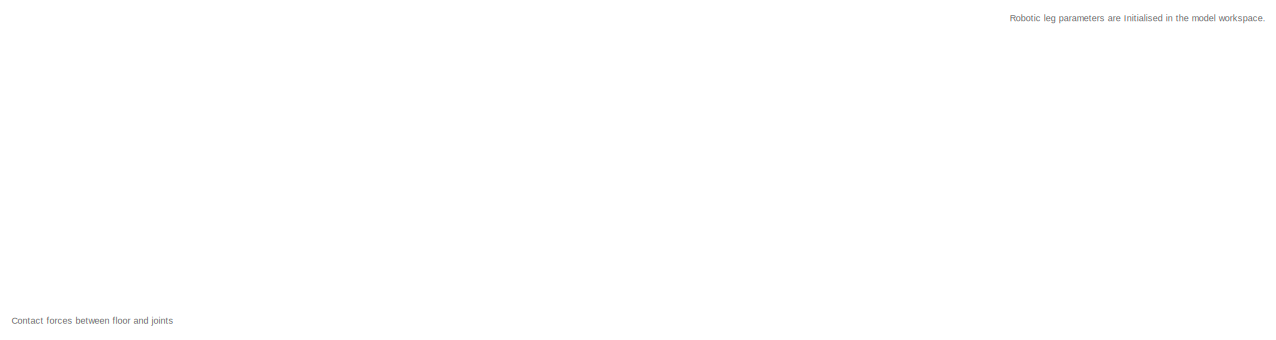
[diagram: root canvas - part 1/7, top left region]
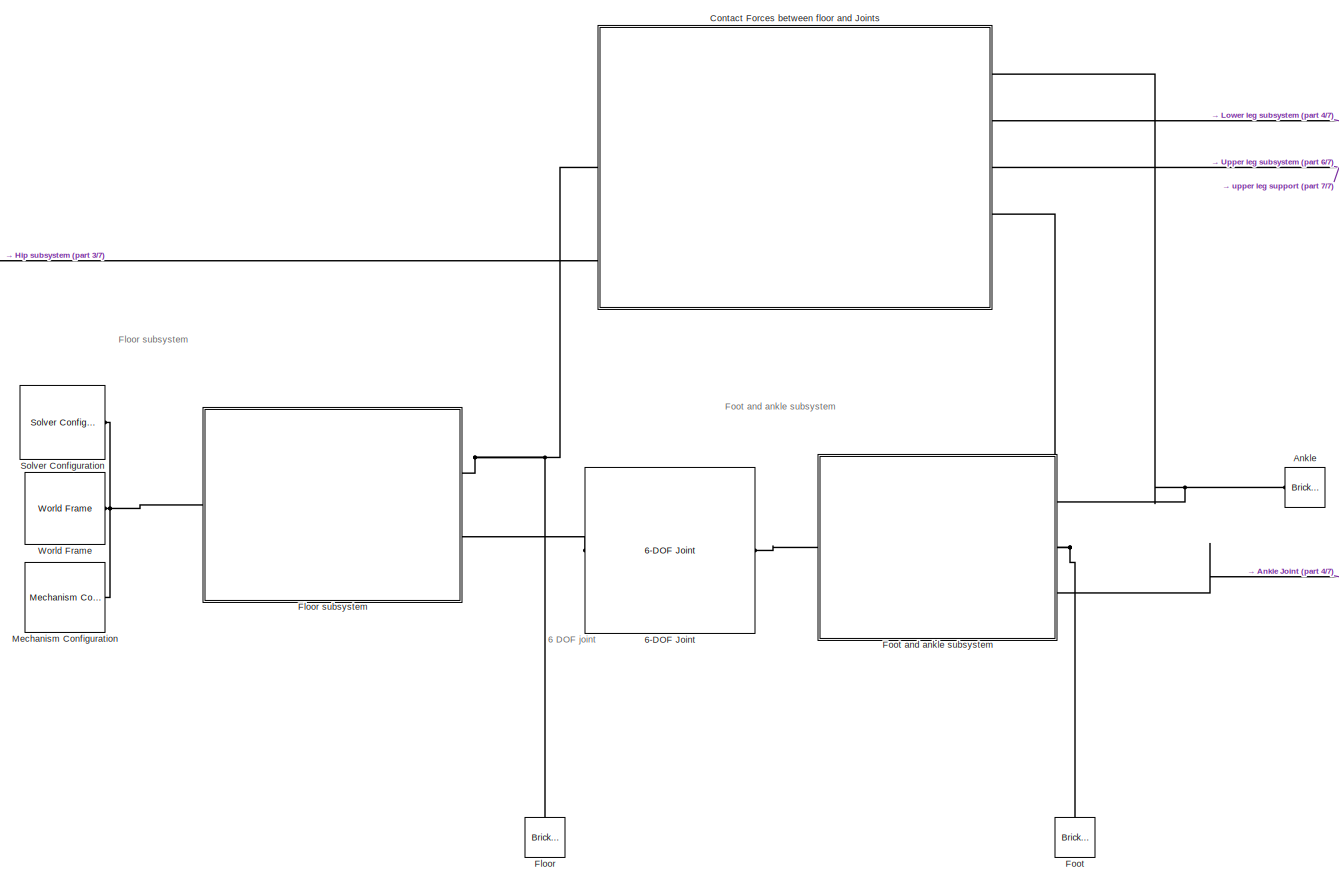
[diagram: root canvas - part 2/7, middle left region]
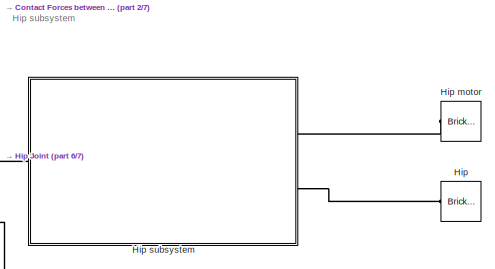
[diagram: root canvas - part 3/7, middle right region]
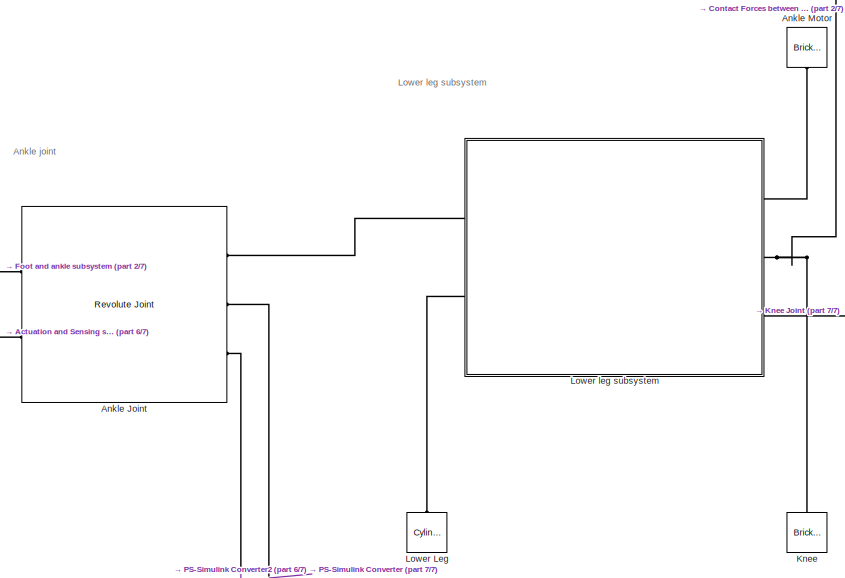
[diagram: root canvas - part 4/7, central region]
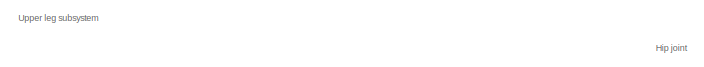
[diagram: root canvas - part 5/7, middle right region]
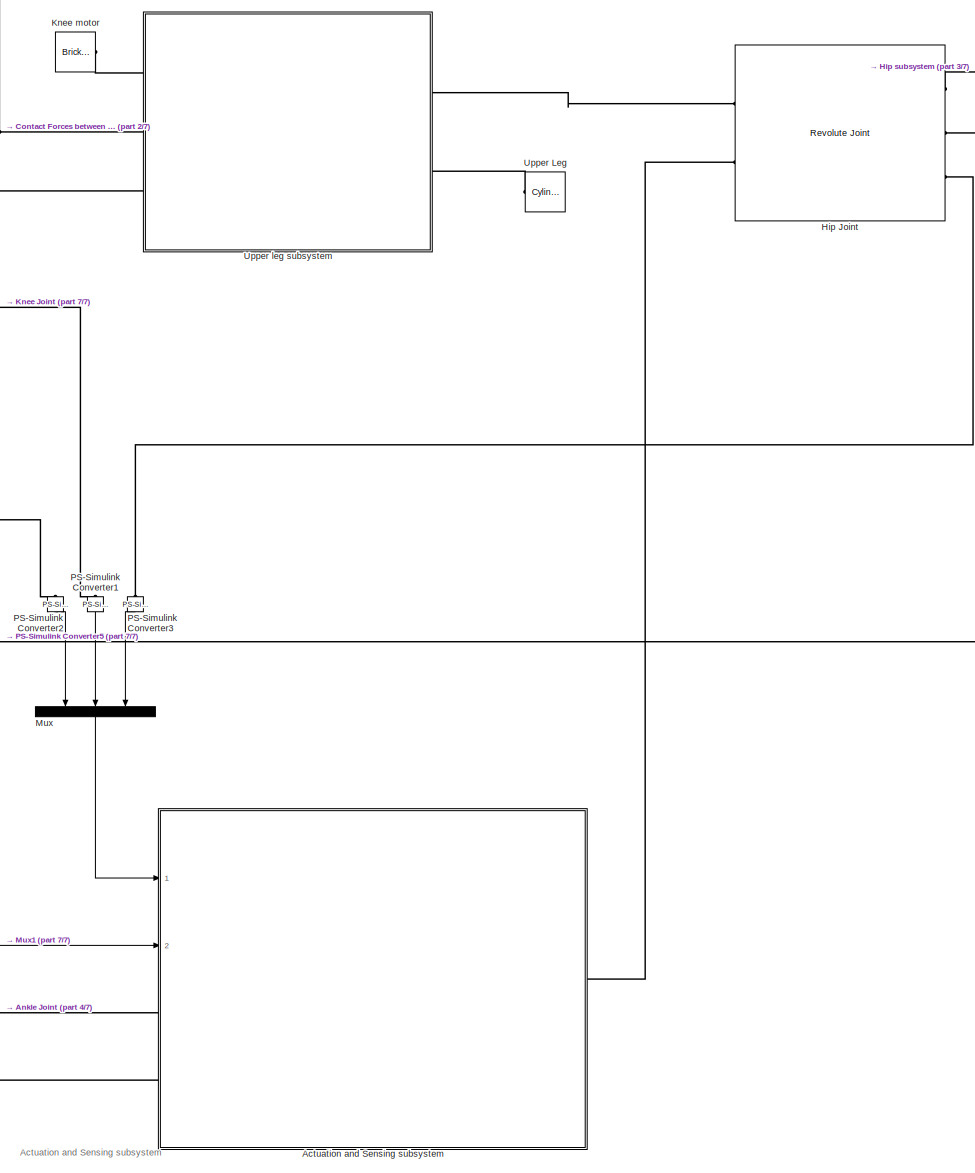
[diagram: root canvas - part 6/7, bottom right region]
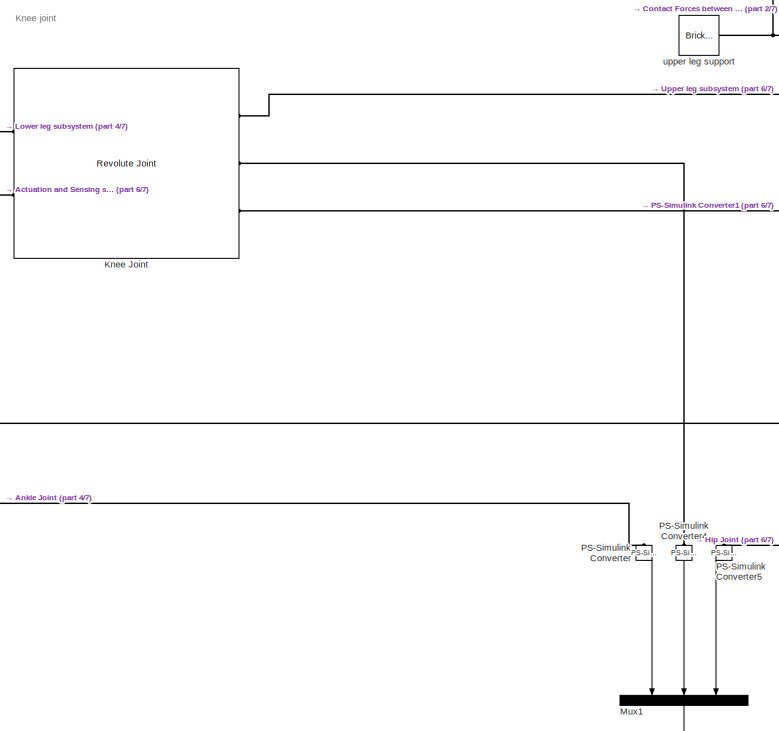
[diagram: root canvas - part 7/7, central region]
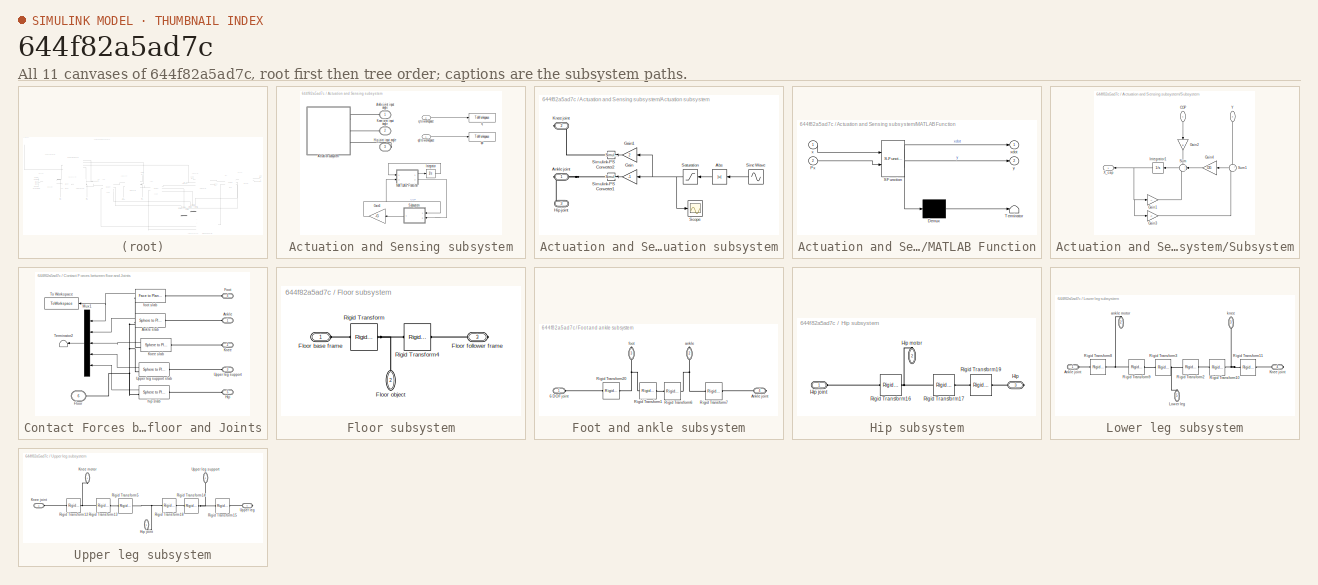
[diagram: thumbnail index - all 11 canvases of the model, root first then tree order]
MODEL slx_644f82a5ad7c
KIND model
CONFIG AbsTol = auto
CONFIG EnableMultiTasking = off
CONFIG FixedStep = auto
CONFIG MaxStep = auto
CONFIG MinStep = auto
CONFIG RelTol = 1e-3
CONFIG SampleTimeConstraint = Unconstrained
CONFIG Solver = VariableStepAuto
CONFIG SolverName = VariableStepAuto
CONFIG StartTime = 0.0
CONFIG StopTime = 10.0
WORKSPACE source: MATLAB code (in-file)
WORKSPACE foot_l = 11.7
WORKSPACE foot_w = 5
WORKSPACE foot_h = 2
WORKSPACE support_w = 4
WORKSPACE support_l = 2.5
WORKSPACE support_h = 5.5
WORKSPACE motor_w = 3.3
WORKSPACE motor_l = 3
WORKSPACE motor_h = 5.4
WORKSPACE link_r = 0.6
WORKSPACE link1_l = 19.4
WORKSPACE link2_l = 15
WORKSPACE hip_l = 9
WORKSPACE hip_w = 6
WORKSPACE hip_h = 4
WORKSPACE surface_damping = 1e2  (= 100)
WORKSPACE surface_stiffness = 1e4  (= 10000)
WORKSPACE foot_m = 20
WORKSPACE support_m = 20
WORKSPACE motor_m = 57.2
WORKSPACE link_m = 20
WORKSPACE hip_m = 30
WORKSPACE m = 3.6
WORKSPACE g = 9.81
WORKSPACE Zc = 0.35
WORKSPACE w = sqrt(g/Zc)
WORKSPACE init_velocity = 0.1
WORKSPACE X0 = 0
WORKSPACE init_CP = X0 + init_velocity/w
WORKSPACE code: A = [-w w;0 w];
WORKSPACE code: B = [0;-w];
WORKSPACE C = [1 0]
WORKSPACE Q = diag([1,1])
WORKSPACE R = 1
WORKSPACE G = lqr(A,B,Q,R)
WORKSPACE VV = 1
WORKSPACE WW = 1
WORKSPACE OG = lqe(A,B,C,VV,WW)
BLOCK [Reference] 6-DOF Joint  REF=sm_lib/Joints/6-DOF Joint
  Ports = [0, 0, 0, 0, 0, 1, 1]
  SourceBlock = sm_lib/Joints/6-DOF Joint
  SourceProductBaseCode = MS
  SourceProductName = Simscape Multibody
  SourceType = 6-DOF Joint
BLOCK [SubSystem] Actuation and Sensing subsystem
  Ports = [2, 0, 0, 0, 0, 2, 1]
  RequestExecContextInheritance = off
BLOCK [SubSystem] Actuation and Sensing subsystem/Actuation subsystem
  Ports = [0, 0, 0, 0, 0, 0, 3]
  RequestExecContextInheritance = off
BLOCK [Abs] Actuation and Sensing subsystem/Actuation subsystem/Abs
  SaturateOnIntegerOverflow = off
BLOCK [PMIOPort] Actuation and Sensing subsystem/Actuation subsystem/Ankle joint
  Side = Right
BLOCK [Gain] Actuation and Sensing subsystem/Actuation subsystem/Gain
  Gain = -1
  OutDataTypeStr = Inherit: Inherit via internal rule
  ParamDataTypeStr = Inherit: Inherit via internal rule
  SaturateOnIntegerOverflow = off
BLOCK [Gain] Actuation and Sensing subsystem/Actuation subsystem/Gain1
  Gain = 2
  OutDataTypeStr = Inherit: Inherit via internal rule
  ParamDataTypeStr = Inherit: Inherit via internal rule
  SaturateOnIntegerOverflow = off
BLOCK [PMIOPort] Actuation and Sensing subsystem/Actuation subsystem/Hip joint
  Port = 3
  Side = Right
  Tag = PMCPort
BLOCK [PMIOPort] Actuation and Sensing subsystem/Actuation subsystem/Knee joint
  Port = 2
  Side = Right
  Tag = PMCPort
BLOCK [Saturate] Actuation and Sensing subsystem/Actuation subsystem/Saturation
  InputPortMap = u0
  LowerLimit = pi/20
  Ports = [1, 1]
  UpperLimit = 30
BLOCK [Scope] Actuation and Sensing subsystem/Actuation subsystem/Scope
  Floating = off
  NumInputPorts = 1
  Ports = [1]
  ScopeSpecificationString = Simulink.scopes.TimeScopeBlockCfg('CurrentConfiguration', extmgr.ConfigurationSet(extmgr.Configuration('Core','General UI',true),extmgr.Configuration('Core','Source UI',true),extmgr.Configuration('Sources','WiredSimulink',true),extmgr.Configuration('Visuals','Time Domain',true,'SerializedDisplays',{struct('MinYLimReal','-3.57329','MaxYLimReal','33.73037','YLabelReal','','MinYLimMag','0.00000','Max...<+1380ch>
BLOCK [Reference] Actuation and Sensing subsystem/Actuation subsystem/Simulink-PS Converter1  REF=nesl_utility/Simulink-PS
Converter
  Ports = [1, 0, 0, 0, 0, 0, 1]
  SourceBlock = nesl_utility/Simulink-PS\nConverter
  SourceProductBaseCode = SS
  SourceProductName = Simscape
  SourceType = Simulink-PS\nConverter
BLOCK [Reference] Actuation and Sensing subsystem/Actuation subsystem/Simulink-PS Converter2  REF=nesl_utility/Simulink-PS
Converter
  Ports = [1, 0, 0, 0, 0, 0, 1]
  SourceBlock = nesl_utility/Simulink-PS\nConverter
  SourceProductBaseCode = SS
  SourceProductName = Simscape
  SourceType = Simulink-PS\nConverter
BLOCK [Sin] Actuation and Sensing subsystem/Actuation subsystem/Sine Wave
  Amplitude = 30
  Frequency = 2*pi/20
  Offset = 1
  Phase = pi/20
  Ports = [0, 1]
  SampleTime = 0
  Samples = 20
BLOCK [PMIOPort] Actuation and Sensing subsystem/Ankle joint input angle
  Side = Left
  Tag = PMCPort
BLOCK [Gain] Actuation and Sensing subsystem/Gain3
  Gain = -G
  Multiplication = Matrix(K*u)
  OutDataTypeStr = Inherit: Inherit via internal rule
  ParamDataTypeStr = Inherit: Inherit via internal rule
  SaturateOnIntegerOverflow = off
BLOCK [PMIOPort] Actuation and Sensing subsystem/Hip joint input angle
  Port = 3
  Side = Right
  Tag = PMCPort
BLOCK [Integrator] Actuation and Sensing subsystem/Integrator
  ContinuousStateAttributes = {'COM', 'CP'}
  InitialCondition = [X0;init_CP]
  Ports = [1, 1]
BLOCK [PMIOPort] Actuation and Sensing subsystem/Knee joint input angle
  Port = 2
  Side = Left
  Tag = PMCPort
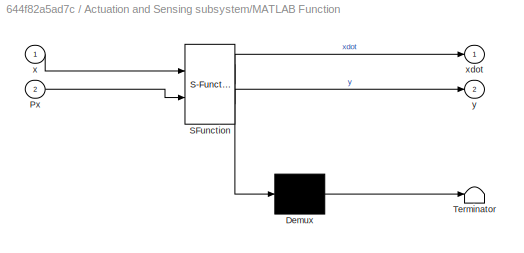
BLOCK [SubSystem] Actuation and Sensing subsystem/MATLAB Function
  ErrorFcn = Stateflow.Translate.translate
  PermitHierarchicalResolution = ExplicitOnly
  Ports = [2, 2]
  RequestExecContextInheritance = off
  SFBlockType = MATLAB Function
  TreatAsAtomicUnit = on
BLOCK [Demux] Actuation and Sensing subsystem/MATLAB Function/ Demux 
  Outputs = 1
  Ports = [1, 1]
BLOCK [S-Function] Actuation and Sensing subsystem/MATLAB Function/ SFunction 
  EnableBusSupport = on
  FunctionName = sf_sfun
  PortCounts = [2 3]
  Ports = [2, 3]
  SFcnIsStateOwnerBlock = off
  SFunctionDeploymentMode = off
  Tag = Stateflow S-Function 2
BLOCK [Terminator] Actuation and Sensing subsystem/MATLAB Function/ Terminator 
BLOCK [Inport] Actuation and Sensing subsystem/MATLAB Function/Px
  IconDisplay = Port number
  Port = 2
BLOCK [Inport] Actuation and Sensing subsystem/MATLAB Function/x
  IconDisplay = Port number
BLOCK [Outport] Actuation and Sensing subsystem/MATLAB Function/xdot
  IconDisplay = Port number
BLOCK [Outport] Actuation and Sensing subsystem/MATLAB Function/y
  IconDisplay = Port number
  Port = 2
BLOCK [SubSystem] Actuation and Sensing subsystem/Subsystem
  Ports = [2, 1]
  RequestExecContextInheritance = off
BLOCK [Inport] Actuation and Sensing subsystem/Subsystem/COP
  IconDisplay = Port number
BLOCK [Gain] Actuation and Sensing subsystem/Subsystem/Gain1
  Gain = A
  Multiplication = Matrix(K*u)
  OutDataTypeStr = Inherit: Inherit via internal rule
  ParamDataTypeStr = Inherit: Inherit via internal rule
  SaturateOnIntegerOverflow = off
BLOCK [Gain] Actuation and Sensing subsystem/Subsystem/Gain2
  Gain = B
  Multiplication = Matrix(K*u)
  OutDataTypeStr = Inherit: Inherit via internal rule
  ParamDataTypeStr = Inherit: Inherit via internal rule
  SaturateOnIntegerOverflow = off
BLOCK [Gain] Actuation and Sensing subsystem/Subsystem/Gain3
  Gain = C
  Multiplication = Matrix(K*u)
  OutDataTypeStr = Inherit: Inherit via internal rule
  ParamDataTypeStr = Inherit: Inherit via internal rule
  SaturateOnIntegerOverflow = off
BLOCK [Gain] Actuation and Sensing subsystem/Subsystem/Gain4
  Gain = OG
  Multiplication = Matrix(K*u)
  OutDataTypeStr = Inherit: Inherit via internal rule
  ParamDataTypeStr = Inherit: Inherit via internal rule
  SaturateOnIntegerOverflow = off
BLOCK [Integrator] Actuation and Sensing subsystem/Subsystem/Integrator1
  InitialCondition = [0;0]
  Ports = [1, 1]
BLOCK [Sum] Actuation and Sensing subsystem/Subsystem/Sum
  IconShape = round
  InputSameDT = off
  Inputs = +++
  OutDataTypeStr = Inherit: Inherit via internal rule
  Ports = [3, 1]
  SaturateOnIntegerOverflow = off
BLOCK [Sum] Actuation and Sensing subsystem/Subsystem/Sum1
  IconShape = round
  InputSameDT = off
  Inputs = +|-
  OutDataTypeStr = Inherit: Inherit via internal rule
  Ports = [2, 1]
  SaturateOnIntegerOverflow = off
BLOCK [Outport] Actuation and Sensing subsystem/Subsystem/X_cap
  IconDisplay = Port number
BLOCK [Inport] Actuation and Sensing subsystem/Subsystem/Y
  IconDisplay = Port number
  Port = 2
BLOCK [ToWorkspace] Actuation and Sensing subsystem/q
  FixptAsFi = on
  MaxDataPoints = inf
  Ports = [1]
  SampleTime = -1
  SaveFormat = Timeseries
  VariableName = q
BLOCK [Inport] Actuation and Sensing subsystem/q to workspace
  IconDisplay = Port number
  Port = 2
BLOCK [ToWorkspace] Actuation and Sensing subsystem/qd
  FixptAsFi = on
  MaxDataPoints = inf
  Ports = [1]
  SampleTime = -1
  SaveFormat = Timeseries
  VariableName = qd
BLOCK [Inport] Actuation and Sensing subsystem/qd to workspace
  IconDisplay = Port number
BLOCK [Reference] Ankle  REF=sm_lib/Body Elements/Brick Solid
  Ports = [0, 0, 0, 0, 0, 0, 1]
  SourceBlock = sm_lib/Body Elements/Brick Solid
  SourceProductBaseCode = MS
  SourceProductName = Simscape Multibody
  SourceType = Brick Solid
BLOCK [Reference] Ankle Joint  REF=sm_lib/Joints/Revolute Joint
  Ports = [0, 0, 0, 0, 0, 2, 3]
  SourceBlock = sm_lib/Joints/Revolute Joint
  SourceProductBaseCode = MS
  SourceProductName = Simscape Multibody
  SourceType = Revolute Joint
BLOCK [Reference] Ankle Motor  REF=sm_lib/Body Elements/Brick Solid
  Ports = [0, 0, 0, 0, 0, 0, 1]
  SourceBlock = sm_lib/Body Elements/Brick Solid
  SourceProductBaseCode = MS
  SourceProductName = Simscape Multibody
  SourceType = Brick Solid
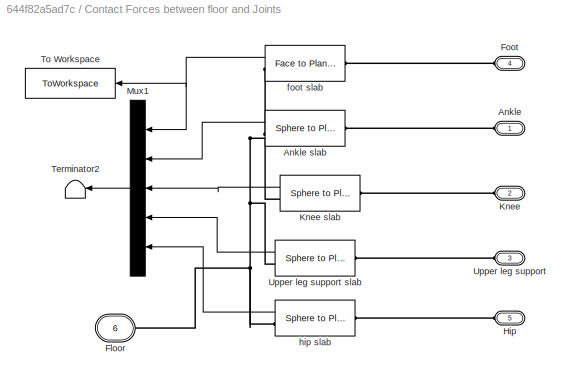
BLOCK [SubSystem] Contact Forces between floor and Joints
  Ports = [0, 0, 0, 0, 0, 5, 1]
  RequestExecContextInheritance = off
BLOCK [PMIOPort] Contact Forces between floor and Joints/Ankle
  Side = Left
BLOCK [Reference] Contact Forces between floor and Joints/Ankle slab  REF=Contact_Forces_Lib/3D/Sphere to Plane Force
  Ports = [0, 1, 0, 0, 0, 1, 1]
  SourceBlock = Contact_Forces_Lib/3D/Sphere to Plane Force
  SourceProductName = Simscape Multibody Contact Forces Library
  SourceType = Sphere to Plane Force
BLOCK [PMIOPort] Contact Forces between floor and Joints/Floor
  Port = 6
  Side = Right
  Tag = PMCPort
BLOCK [PMIOPort] Contact Forces between floor and Joints/Foot
  Port = 4
  Side = Left
BLOCK [PMIOPort] Contact Forces between floor and Joints/Hip
  Port = 5
  Side = Left
BLOCK [PMIOPort] Contact Forces between floor and Joints/Knee
  Port = 2
  Side = Left
BLOCK [Reference] Contact Forces between floor and Joints/Knee slab  REF=Contact_Forces_Lib/3D/Sphere to Plane Force
  Ports = [0, 1, 0, 0, 0, 1, 1]
  SourceBlock = Contact_Forces_Lib/3D/Sphere to Plane Force
  SourceProductName = Simscape Multibody Contact Forces Library
  SourceType = Sphere to Plane Force
BLOCK [Mux] Contact Forces between floor and Joints/Mux1
  DisplayOption = bar
  Inputs = 5
  Ports = [5, 1]
BLOCK [Terminator] Contact Forces between floor and Joints/Terminator2
BLOCK [ToWorkspace] Contact Forces between floor and Joints/To Workspace
  FixptAsFi = on
  MaxDataPoints = inf
  Ports = [1]
  SampleTime = -1
  SaveFormat = Timeseries
  VariableName = foot_forces
BLOCK [PMIOPort] Contact Forces between floor and Joints/Upper leg support
  Port = 3
  Side = Left
BLOCK [Reference] Contact Forces between floor and Joints/Upper leg support slab  REF=Contact_Forces_Lib/3D/Sphere to Plane Force
  Ports = [0, 1, 0, 0, 0, 1, 1]
  SourceBlock = Contact_Forces_Lib/3D/Sphere to Plane Force
  SourceProductName = Simscape Multibody Contact Forces Library
  SourceType = Sphere to Plane Force
BLOCK [Reference] Contact Forces between floor and Joints/foot slab  REF=Contact_Forces_Lib/3D/Composite
Forces/Face to Plane Force
  Ports = [0, 1, 0, 0, 0, 1, 1]
  SourceBlock = Contact_Forces_Lib/3D/Composite\nForces/Face to Plane Force
  SourceProductName = Simscape Multibody Contact Forces Library
  SourceType = Face to Plane Force
BLOCK [Reference] Contact Forces between floor and Joints/hip slab  REF=Contact_Forces_Lib/3D/Sphere to Plane Force
  Ports = [0, 1, 0, 0, 0, 1, 1]
  SourceBlock = Contact_Forces_Lib/3D/Sphere to Plane Force
  SourceProductName = Simscape Multibody Contact Forces Library
  SourceType = Sphere to Plane Force
BLOCK [Reference] Floor  REF=sm_lib/Body Elements/Brick Solid
  Ports = [0, 0, 0, 0, 0, 0, 1]
  SourceBlock = sm_lib/Body Elements/Brick Solid
  SourceProductBaseCode = MS
  SourceProductName = Simscape Multibody
  SourceType = Brick Solid
BLOCK [SubSystem] Floor subsystem
  Ports = [0, 0, 0, 0, 0, 1, 2]
  RequestExecContextInheritance = off
BLOCK [PMIOPort] Floor subsystem/Floor base frame
  Side = Left
BLOCK [PMIOPort] Floor subsystem/Floor follower frame
  Port = 3
  Side = Right
BLOCK [PMIOPort] Floor subsystem/Floor object
  Port = 2
  Side = Right
BLOCK [Reference] Floor subsystem/Rigid Transform  REF=sm_lib/Frames and
Transforms/Rigid
Transform
  Ports = [0, 0, 0, 0, 0, 1, 1]
  SourceBlock = sm_lib/Frames and\nTransforms/Rigid\nTransform
  SourceProductBaseCode = MS
  SourceProductName = Simscape Multibody
  SourceType = Rigid\nTransform
BLOCK [Reference] Floor subsystem/Rigid Transform4  REF=sm_lib/Frames and
Transforms/Rigid
Transform
  Ports = [0, 0, 0, 0, 0, 1, 1]
  SourceBlock = sm_lib/Frames and\nTransforms/Rigid\nTransform
  SourceProductBaseCode = MS
  SourceProductName = Simscape Multibody
  SourceType = Rigid\nTransform
BLOCK [Reference] Foot  REF=sm_lib/Body Elements/Brick Solid
  Ports = [0, 0, 0, 0, 0, 0, 1]
  SourceBlock = sm_lib/Body Elements/Brick Solid
  SourceProductBaseCode = MS
  SourceProductName = Simscape Multibody
  SourceType = Brick Solid
BLOCK [SubSystem] Foot and ankle subsystem
  Ports = [0, 0, 0, 0, 0, 1, 3]
  RequestExecContextInheritance = off
BLOCK [PMIOPort] Foot and ankle subsystem/6 DOF joint
  Side = Left
BLOCK [PMIOPort] Foot and ankle subsystem/Ankle joint
  Port = 4
  Side = Right
BLOCK [Reference] Foot and ankle subsystem/Rigid Transform1  REF=sm_lib/Frames and
Transforms/Rigid
Transform
  Ports = [0, 0, 0, 0, 0, 1, 1]
  SourceBlock = sm_lib/Frames and\nTransforms/Rigid\nTransform
  SourceProductBaseCode = MS
  SourceProductName = Simscape Multibody
  SourceType = Rigid\nTransform
BLOCK [Reference] Foot and ankle subsystem/Rigid Transform20  REF=sm_lib/Frames and
Transforms/Rigid
Transform
  Ports = [0, 0, 0, 0, 0, 1, 1]
  SourceBlock = sm_lib/Frames and\nTransforms/Rigid\nTransform
  SourceProductBaseCode = MS
  SourceProductName = Simscape Multibody
  SourceType = Rigid\nTransform
BLOCK [Reference] Foot and ankle subsystem/Rigid Transform6  REF=sm_lib/Frames and
Transforms/Rigid
Transform
  Ports = [0, 0, 0, 0, 0, 1, 1]
  SourceBlock = sm_lib/Frames and\nTransforms/Rigid\nTransform
  SourceProductBaseCode = MS
  SourceProductName = Simscape Multibody
  SourceType = Rigid\nTransform
BLOCK [Reference] Foot and ankle subsystem/Rigid Transform7  REF=sm_lib/Frames and
Transforms/Rigid
Transform
  Ports = [0, 0, 0, 0, 0, 1, 1]
  SourceBlock = sm_lib/Frames and\nTransforms/Rigid\nTransform
  SourceProductBaseCode = MS
  SourceProductName = Simscape Multibody
  SourceType = Rigid\nTransform
BLOCK [PMIOPort] Foot and ankle subsystem/ankle
  Port = 2
  Side = Right
BLOCK [PMIOPort] Foot and ankle subsystem/foot
  Port = 3
  Side = Right
BLOCK [Reference] Hip  REF=sm_lib/Body Elements/Brick Solid
  Ports = [0, 0, 0, 0, 0, 0, 1]
  SourceBlock = sm_lib/Body Elements/Brick Solid
  SourceProductBaseCode = MS
  SourceProductName = Simscape Multibody
  SourceType = Brick Solid
BLOCK [Reference] Hip Joint  REF=sm_lib/Joints/Revolute Joint
  Ports = [0, 0, 0, 0, 0, 2, 3]
  SourceBlock = sm_lib/Joints/Revolute Joint
  SourceProductBaseCode = MS
  SourceProductName = Simscape Multibody
  SourceType = Revolute Joint
BLOCK [Reference] Hip motor  REF=sm_lib/Body Elements/Brick Solid
  Ports = [0, 0, 0, 0, 0, 0, 1]
  SourceBlock = sm_lib/Body Elements/Brick Solid
  SourceProductBaseCode = MS
  SourceProductName = Simscape Multibody
  SourceType = Brick Solid
BLOCK [SubSystem] Hip subsystem
  Ports = [0, 0, 0, 0, 0, 1, 2]
  RequestExecContextInheritance = off
BLOCK [PMIOPort] Hip subsystem/Hip
  Port = 3
  Side = Right
BLOCK [PMIOPort] Hip subsystem/Hip joint
  Side = Left
BLOCK [PMIOPort] Hip subsystem/Hip motor
  Port = 2
  Side = Right
BLOCK [Reference] Hip subsystem/Rigid Transform16  REF=sm_lib/Frames and
Transforms/Rigid
Transform
  Ports = [0, 0, 0, 0, 0, 1, 1]
  SourceBlock = sm_lib/Frames and\nTransforms/Rigid\nTransform
  SourceProductBaseCode = MS
  SourceProductName = Simscape Multibody
  SourceType = Rigid\nTransform
BLOCK [Reference] Hip subsystem/Rigid Transform17  REF=sm_lib/Frames and
Transforms/Rigid
Transform
  Ports = [0, 0, 0, 0, 0, 1, 1]
  SourceBlock = sm_lib/Frames and\nTransforms/Rigid\nTransform
  SourceProductBaseCode = MS
  SourceProductName = Simscape Multibody
  SourceType = Rigid\nTransform
BLOCK [Reference] Hip subsystem/Rigid Transform19  REF=sm_lib/Frames and
Transforms/Rigid
Transform
  Ports = [0, 0, 0, 0, 0, 1, 1]
  SourceBlock = sm_lib/Frames and\nTransforms/Rigid\nTransform
  SourceProductBaseCode = MS
  SourceProductName = Simscape Multibody
  SourceType = Rigid\nTransform
BLOCK [Reference] Knee  REF=sm_lib/Body Elements/Brick Solid
  Ports = [0, 0, 0, 0, 0, 0, 1]
  SourceBlock = sm_lib/Body Elements/Brick Solid
  SourceProductBaseCode = MS
  SourceProductName = Simscape Multibody
  SourceType = Brick Solid
BLOCK [Reference] Knee Joint  REF=sm_lib/Joints/Revolute Joint
  Ports = [0, 0, 0, 0, 0, 2, 3]
  SourceBlock = sm_lib/Joints/Revolute Joint
  SourceProductBaseCode = MS
  SourceProductName = Simscape Multibody
  SourceType = Revolute Joint
BLOCK [Reference] Knee motor  REF=sm_lib/Body Elements/Brick Solid
  Ports = [0, 0, 0, 0, 0, 0, 1]
  SourceBlock = sm_lib/Body Elements/Brick Solid
  SourceProductBaseCode = MS
  SourceProductName = Simscape Multibody
  SourceType = Brick Solid
BLOCK [Reference] Lower Leg  REF=sm_lib/Body Elements/Cylindrical Solid
  Ports = [0, 0, 0, 0, 0, 0, 1]
  SourceBlock = sm_lib/Body Elements/Cylindrical Solid
  SourceProductBaseCode = MS
  SourceProductName = Simscape Multibody
  SourceType = Cylindrical Solid
BLOCK [SubSystem] Lower leg subsystem
  Ports = [0, 0, 0, 0, 0, 2, 3]
  RequestExecContextInheritance = off
BLOCK [PMIOPort] Lower leg subsystem/Ankle joint
  Side = Left
BLOCK [PMIOPort] Lower leg subsystem/Knee joint
  Port = 4
  Side = Right
BLOCK [PMIOPort] Lower leg subsystem/Lower leg
  Port = 5
  Side = Left
BLOCK [Reference] Lower leg subsystem/Rigid Transform10  REF=sm_lib/Frames and
Transforms/Rigid
Transform
  Ports = [0, 0, 0, 0, 0, 1, 1]
  SourceBlock = sm_lib/Frames and\nTransforms/Rigid\nTransform
  SourceProductBaseCode = MS
  SourceProductName = Simscape Multibody
  SourceType = Rigid\nTransform
BLOCK [Reference] Lower leg subsystem/Rigid Transform11  REF=sm_lib/Frames and
Transforms/Rigid
Transform
  Ports = [0, 0, 0, 0, 0, 1, 1]
  SourceBlock = sm_lib/Frames and\nTransforms/Rigid\nTransform
  SourceProductBaseCode = MS
  SourceProductName = Simscape Multibody
  SourceType = Rigid\nTransform
BLOCK [Reference] Lower leg subsystem/Rigid Transform2  REF=sm_lib/Frames and
Transforms/Rigid
Transform
  Ports = [0, 0, 0, 0, 0, 1, 1]
  SourceBlock = sm_lib/Frames and\nTransforms/Rigid\nTransform
  SourceProductBaseCode = MS
  SourceProductName = Simscape Multibody
  SourceType = Rigid\nTransform
BLOCK [Reference] Lower leg subsystem/Rigid Transform3  REF=sm_lib/Frames and
Transforms/Rigid
Transform
  Ports = [0, 0, 0, 0, 0, 1, 1]
  SourceBlock = sm_lib/Frames and\nTransforms/Rigid\nTransform
  SourceProductBaseCode = MS
  SourceProductName = Simscape Multibody
  SourceType = Rigid\nTransform
BLOCK [Reference] Lower leg subsystem/Rigid Transform8  REF=sm_lib/Frames and
Transforms/Rigid
Transform
  Ports = [0, 0, 0, 0, 0, 1, 1]
  SourceBlock = sm_lib/Frames and\nTransforms/Rigid\nTransform
  SourceProductBaseCode = MS
  SourceProductName = Simscape Multibody
  SourceType = Rigid\nTransform
BLOCK [Reference] Lower leg subsystem/Rigid Transform9  REF=sm_lib/Frames and
Transforms/Rigid
Transform
  Ports = [0, 0, 0, 0, 0, 1, 1]
  SourceBlock = sm_lib/Frames and\nTransforms/Rigid\nTransform
  SourceProductBaseCode = MS
  SourceProductName = Simscape Multibody
  SourceType = Rigid\nTransform
BLOCK [PMIOPort] Lower leg subsystem/ankle motor
  Port = 2
  Side = Right
BLOCK [PMIOPort] Lower leg subsystem/knee
  Port = 3
  Side = Right
BLOCK [Reference] Mechanism Configuration  REF=sm_lib/Utilities/Mechanism
Configuration
  Ports = [0, 0, 0, 0, 0, 0, 1]
  SourceBlock = sm_lib/Utilities/Mechanism\nConfiguration
  SourceProductBaseCode = MS
  SourceProductName = Simscape Multibody
  SourceType = Mechanism\nConfiguration
BLOCK [Mux] Mux
  DisplayOption = bar
  Inputs = 3
  Ports = [3, 1]
BLOCK [Mux] Mux1
  DisplayOption = bar
  Inputs = 3
  Ports = [3, 1]
BLOCK [Reference] PS-Simulink Converter  REF=nesl_utility/PS-Simulink
Converter
  Ports = [0, 1, 0, 0, 0, 1]
  SourceBlock = nesl_utility/PS-Simulink\nConverter
  SourceProductBaseCode = SS
  SourceProductName = Simscape
  SourceType = PS-Simulink\nConverter
BLOCK [Reference] PS-Simulink Converter1  REF=nesl_utility/PS-Simulink
Converter
  Ports = [0, 1, 0, 0, 0, 1]
  SourceBlock = nesl_utility/PS-Simulink\nConverter
  SourceProductBaseCode = SS
  SourceProductName = Simscape
  SourceType = PS-Simulink\nConverter
BLOCK [Reference] PS-Simulink Converter2  REF=nesl_utility/PS-Simulink
Converter
  Ports = [0, 1, 0, 0, 0, 1]
  SourceBlock = nesl_utility/PS-Simulink\nConverter
  SourceProductBaseCode = SS
  SourceProductName = Simscape
  SourceType = PS-Simulink\nConverter
BLOCK [Reference] PS-Simulink Converter3  REF=nesl_utility/PS-Simulink
Converter
  Ports = [0, 1, 0, 0, 0, 1]
  SourceBlock = nesl_utility/PS-Simulink\nConverter
  SourceProductBaseCode = SS
  SourceProductName = Simscape
  SourceType = PS-Simulink\nConverter
BLOCK [Reference] PS-Simulink Converter4  REF=nesl_utility/PS-Simulink
Converter
  Ports = [0, 1, 0, 0, 0, 1]
  SourceBlock = nesl_utility/PS-Simulink\nConverter
  SourceProductBaseCode = SS
  SourceProductName = Simscape
  SourceType = PS-Simulink\nConverter
BLOCK [Reference] PS-Simulink Converter5  REF=nesl_utility/PS-Simulink
Converter
  Ports = [0, 1, 0, 0, 0, 1]
  SourceBlock = nesl_utility/PS-Simulink\nConverter
  SourceProductBaseCode = SS
  SourceProductName = Simscape
  SourceType = PS-Simulink\nConverter
BLOCK [Reference] Solver Configuration  REF=nesl_utility/Solver
Configuration
  Ports = [0, 0, 0, 0, 0, 0, 1]
  SourceBlock = nesl_utility/Solver\nConfiguration
  SourceProductBaseCode = SS
  SourceProductName = Simscape
  SourceType = Solver\nConfiguration
BLOCK [Reference] Upper Leg  REF=sm_lib/Body Elements/Cylindrical Solid
  Ports = [0, 0, 0, 0, 0, 0, 1]
  SourceBlock = sm_lib/Body Elements/Cylindrical Solid
  SourceProductBaseCode = MS
  SourceProductName = Simscape Multibody
  SourceType = Cylindrical Solid
BLOCK [SubSystem] Upper leg subsystem
  Ports = [0, 0, 0, 0, 0, 3, 2]
  RequestExecContextInheritance = off
BLOCK [PMIOPort] Upper leg subsystem/Hip joint
  Port = 5
  Side = Right
BLOCK [PMIOPort] Upper leg subsystem/Knee joint
  Port = 3
  Side = Left
BLOCK [PMIOPort] Upper leg subsystem/Knee motor
  Side = Left
BLOCK [Reference] Upper leg subsystem/Rigid Transform12  REF=sm_lib/Frames and
Transforms/Rigid
Transform
  Ports = [0, 0, 0, 0, 0, 1, 1]
  SourceBlock = sm_lib/Frames and\nTransforms/Rigid\nTransform
  SourceProductBaseCode = MS
  SourceProductName = Simscape Multibody
  SourceType = Rigid\nTransform
BLOCK [Reference] Upper leg subsystem/Rigid Transform13  REF=sm_lib/Frames and
Transforms/Rigid
Transform
  Ports = [0, 0, 0, 0, 0, 1, 1]
  SourceBlock = sm_lib/Frames and\nTransforms/Rigid\nTransform
  SourceProductBaseCode = MS
  SourceProductName = Simscape Multibody
  SourceType = Rigid\nTransform
BLOCK [Reference] Upper leg subsystem/Rigid Transform14  REF=sm_lib/Frames and
Transforms/Rigid
Transform
  Ports = [0, 0, 0, 0, 0, 1, 1]
  SourceBlock = sm_lib/Frames and\nTransforms/Rigid\nTransform
  SourceProductBaseCode = MS
  SourceProductName = Simscape Multibody
  SourceType = Rigid\nTransform
BLOCK [Reference] Upper leg subsystem/Rigid Transform15  REF=sm_lib/Frames and
Transforms/Rigid
Transform
  Ports = [0, 0, 0, 0, 0, 1, 1]
  SourceBlock = sm_lib/Frames and\nTransforms/Rigid\nTransform
  SourceProductBaseCode = MS
  SourceProductName = Simscape Multibody
  SourceType = Rigid\nTransform
BLOCK [Reference] Upper leg subsystem/Rigid Transform18  REF=sm_lib/Frames and
Transforms/Rigid
Transform
  Ports = [0, 0, 0, 0, 0, 1, 1]
  SourceBlock = sm_lib/Frames and\nTransforms/Rigid\nTransform
  SourceProductBaseCode = MS
  SourceProductName = Simscape Multibody
  SourceType = Rigid\nTransform
BLOCK [Reference] Upper leg subsystem/Rigid Transform5  REF=sm_lib/Frames and
Transforms/Rigid
Transform
  Ports = [0, 0, 0, 0, 0, 1, 1]
  SourceBlock = sm_lib/Frames and\nTransforms/Rigid\nTransform
  SourceProductBaseCode = MS
  SourceProductName = Simscape Multibody
  SourceType = Rigid\nTransform
BLOCK [PMIOPort] Upper leg subsystem/Upper leg
  Port = 4
  Side = Right
BLOCK [PMIOPort] Upper leg subsystem/Upper leg support
  Port = 2
  Side = Left
BLOCK [Reference] World Frame  REF=sm_lib/Frames and
Transforms/World Frame
  Ports = [0, 0, 0, 0, 0, 0, 1]
  SourceBlock = sm_lib/Frames and\nTransforms/World Frame
  SourceProductBaseCode = MS
  SourceProductName = Simscape Multibody
  SourceType = World Frame
BLOCK [Reference] upper leg support  REF=sm_lib/Body Elements/Brick Solid
  Ports = [0, 0, 0, 0, 0, 0, 1]
  SourceBlock = sm_lib/Body Elements/Brick Solid
  SourceProductBaseCode = MS
  SourceProductName = Simscape Multibody
  SourceType = Brick Solid
ANNOTATION (root): 6 DOF joint
ANNOTATION (root): Actuation and Sensing subsystem
ANNOTATION (root): Foot and ankle subsystem
ANNOTATION (root): Hip joint
ANNOTATION (root): Hip subsystem
ANNOTATION (root): Knee joint
ANNOTATION (root): Lower leg subsystem
ANNOTATION (root): Upper leg subsystem
ANNOTATION (root): Contact forces between floor and joints
ANNOTATION (root): Floor subsystem
ANNOTATION (root): Robotic leg parameters are Initialised in the model workspace.
ANNOTATION (root): Ankle joint
LINE Actuation and Sensing subsystem/Actuation subsystem/Abs:1 -> Actuation and Sensing subsystem/Actuation subsystem/Saturation:1
LINE Actuation and Sensing subsystem/Actuation subsystem/Gain1:1 -> Actuation and Sensing subsystem/Actuation subsystem/Simulink-PS Converter2:1
LINE Actuation and Sensing subsystem/Actuation subsystem/Gain:1 -> Actuation and Sensing subsystem/Actuation subsystem/Simulink-PS Converter1:1
NET Actuation and Sensing subsystem/Actuation subsystem/Saturation:1 -> Actuation and Sensing subsystem/Actuation subsystem/Gain1:1, Actuation and Sensing subsystem/Actuation subsystem/Gain:1, Actuation and Sensing subsystem/Actuation subsystem/Scope:1
LINE Actuation and Sensing subsystem/Actuation subsystem/Sine Wave:1 -> Actuation and Sensing subsystem/Actuation subsystem/Abs:1
NET Actuation and Sensing subsystem/Gain3:1 -> Actuation and Sensing subsystem/MATLAB Function:2, Actuation and Sensing subsystem/Subsystem:1
LINE Actuation and Sensing subsystem/Integrator:1 -> Actuation and Sensing subsystem/MATLAB Function:1
LINE Actuation and Sensing subsystem/MATLAB Function:1 -> Actuation and Sensing subsystem/Integrator:1
LINE Actuation and Sensing subsystem/MATLAB Function:2 -> Actuation and Sensing subsystem/Subsystem:2
LINE Actuation and Sensing subsystem/Subsystem/COP:1 -> Actuation and Sensing subsystem/Subsystem/Gain2:1
LINE Actuation and Sensing subsystem/Subsystem/Gain1:1 -> Actuation and Sensing subsystem/Subsystem/Sum:3
LINE Actuation and Sensing subsystem/Subsystem/Gain2:1 -> Actuation and Sensing subsystem/Subsystem/Sum:1
LINE Actuation and Sensing subsystem/Subsystem/Gain3:1 -> Actuation and Sensing subsystem/Subsystem/Sum1:2
LINE Actuation and Sensing subsystem/Subsystem/Gain4:1 -> Actuation and Sensing subsystem/Subsystem/Sum:2
NET Actuation and Sensing subsystem/Subsystem/Integrator1:1 -> Actuation and Sensing subsystem/Subsystem/Gain1:1, Actuation and Sensing subsystem/Subsystem/Gain3:1, Actuation and Sensing subsystem/Subsystem/X_cap:1
LINE Actuation and Sensing subsystem/Subsystem/Sum1:1 -> Actuation and Sensing subsystem/Subsystem/Gain4:1
LINE Actuation and Sensing subsystem/Subsystem/Sum:1 -> Actuation and Sensing subsystem/Subsystem/Integrator1:1
LINE Actuation and Sensing subsystem/Subsystem/Y:1 -> Actuation and Sensing subsystem/Subsystem/Sum1:1
LINE Actuation and Sensing subsystem/Subsystem:1 -> Actuation and Sensing subsystem/Gain3:1
LINE Actuation and Sensing subsystem/q to workspace:1 -> Actuation and Sensing subsystem/q:1
LINE Actuation and Sensing subsystem/qd to workspace:1 -> Actuation and Sensing subsystem/qd:1
LINE Contact Forces between floor and Joints/Ankle slab:1 -> Contact Forces between floor and Joints/Mux1:2
LINE Contact Forces between floor and Joints/Knee slab:1 -> Contact Forces between floor and Joints/Mux1:3
LINE Contact Forces between floor and Joints/Mux1:1 -> Contact Forces between floor and Joints/Terminator2:1
LINE Contact Forces between floor and Joints/Upper leg support slab:1 -> Contact Forces between floor and Joints/Mux1:4
NET Contact Forces between floor and Joints/foot slab:1 -> Contact Forces between floor and Joints/Mux1:1, Contact Forces between floor and Joints/To Workspace:1
LINE Contact Forces between floor and Joints/hip slab:1 -> Contact Forces between floor and Joints/Mux1:5
LINE Mux1:1 -> Actuation and Sensing subsystem:2
LINE Mux:1 -> Actuation and Sensing subsystem:1
LINE PS-Simulink Converter1:1 -> Mux:2
LINE PS-Simulink Converter2:1 -> Mux:1
LINE PS-Simulink Converter3:1 -> Mux:3
LINE PS-Simulink Converter4:1 -> Mux1:2
LINE PS-Simulink Converter5:1 -> Mux1:3
LINE PS-Simulink Converter:1 -> Mux1:1
PLINE 6-DOF Joint:LConn1 -- Floor subsystem:RConn2
PLINE 6-DOF Joint:RConn1 -- Foot and ankle subsystem:LConn1
PNET net1: Actuation and Sensing subsystem/Actuation subsystem/Ankle joint:RConn1 -- Actuation and Sensing subsystem/Actuation subsystem/Hip joint:RConn1 -- Actuation and Sensing subsystem/Actuation subsystem/Simulink-PS Converter1:RConn1
PLINE Actuation and Sensing subsystem/Actuation subsystem/Knee joint:RConn1 -- Actuation and Sensing subsystem/Actuation subsystem/Simulink-PS Converter2:RConn1
PLINE Actuation and Sensing subsystem/Actuation subsystem:RConn1 -- Actuation and Sensing subsystem/Ankle joint input angle:RConn1
PLINE Actuation and Sensing subsystem/Actuation subsystem:RConn2 -- Actuation and Sensing subsystem/Knee joint input angle:RConn1
PLINE Actuation and Sensing subsystem/Actuation subsystem:RConn3 -- Actuation and Sensing subsystem/Hip joint input angle:RConn1
PLINE Actuation and Sensing subsystem:LConn1 -- Ankle Joint:LConn2
PLINE Actuation and Sensing subsystem:LConn2 -- Knee Joint:LConn2
PLINE Actuation and Sensing subsystem:RConn1 -- Hip Joint:LConn2
PLINE Ankle Joint:LConn1 -- Foot and ankle subsystem:RConn3
PLINE Ankle Joint:RConn1 -- Lower leg subsystem:LConn1
PLINE Ankle Joint:RConn2 -- PS-Simulink Converter:LConn1
PLINE Ankle Joint:RConn3 -- PS-Simulink Converter2:LConn1
PLINE Ankle Motor:RConn1 -- Lower leg subsystem:RConn1
PNET net2: Ankle:RConn1 -- Contact Forces between floor and Joints:LConn1 -- Foot and ankle subsystem:RConn1
PLINE Contact Forces between floor and Joints/Ankle slab:LConn1 -- Contact Forces between floor and Joints/Ankle:RConn1
PNET net3: Contact Forces between floor and Joints/Ankle slab:RConn1 -- Contact Forces between floor and Joints/Floor:RConn1 -- Contact Forces between floor and Joints/Knee slab:RConn1 -- Contact Forces between floor and Joints/Upper leg support slab:RConn1 -- Contact Forces between floor and Joints/foot slab:RConn1 -- Contact Forces between floor and Joints/hip slab:RConn1
PLINE Contact Forces between floor and Joints/Foot:RConn1 -- Contact Forces between floor and Joints/foot slab:LConn1
PLINE Contact Forces between floor and Joints/Hip:RConn1 -- Contact Forces between floor and Joints/hip slab:LConn1
PLINE Contact Forces between floor and Joints/Knee slab:LConn1 -- Contact Forces between floor and Joints/Knee:RConn1
PLINE Contact Forces between floor and Joints/Upper leg support slab:LConn1 -- Contact Forces between floor and Joints/Upper leg support:RConn1
PNET net4: Contact Forces between floor and Joints:LConn2 -- Knee:RConn1 -- Lower leg subsystem:RConn2
PNET net5: Contact Forces between floor and Joints:LConn3 -- Upper leg subsystem:LConn2 -- upper leg support:RConn1
PNET net6: Contact Forces between floor and Joints:LConn4 -- Foot and ankle subsystem:RConn2 -- Foot:RConn1
PNET net7: Contact Forces between floor and Joints:LConn5 -- Hip subsystem:RConn2 -- Hip:RConn1
PNET net8: Contact Forces between floor and Joints:RConn1 -- Floor subsystem:RConn1 -- Floor:RConn1
PLINE Floor subsystem/Floor base frame:RConn1 -- Floor subsystem/Rigid Transform:RConn1
PLINE Floor subsystem/Floor follower frame:RConn1 -- Floor subsystem/Rigid Transform4:RConn1
PNET net9: Floor subsystem/Floor object:RConn1 -- Floor subsystem/Rigid Transform4:LConn1 -- Floor subsystem/Rigid Transform:LConn1
PNET net10: Floor subsystem:LConn1 -- Mechanism Configuration:RConn1 -- Solver Configuration:RConn1 -- World Frame:RConn1
PLINE Foot and ankle subsystem/6 DOF joint:RConn1 -- Foot and ankle subsystem/Rigid Transform20:RConn1
PLINE Foot and ankle subsystem/Ankle joint:RConn1 -- Foot and ankle subsystem/Rigid Transform7:RConn1
PNET net11: Foot and ankle subsystem/Rigid Transform1:LConn1 -- Foot and ankle subsystem/Rigid Transform20:LConn1 -- Foot and ankle subsystem/foot:RConn1
PLINE Foot and ankle subsystem/Rigid Transform1:RConn1 -- Foot and ankle subsystem/Rigid Transform6:RConn1
PNET net12: Foot and ankle subsystem/Rigid Transform6:LConn1 -- Foot and ankle subsystem/Rigid Transform7:LConn1 -- Foot and ankle subsystem/ankle:RConn1
PLINE Hip Joint:LConn1 -- Upper leg subsystem:RConn1
PLINE Hip Joint:RConn1 -- Hip subsystem:LConn1
PLINE Hip Joint:RConn2 -- PS-Simulink Converter5:LConn1
PLINE Hip Joint:RConn3 -- PS-Simulink Converter3:LConn1
PLINE Hip motor:RConn1 -- Hip subsystem:RConn1
PLINE Hip subsystem/Hip joint:RConn1 -- Hip subsystem/Rigid Transform16:RConn1
PNET net13: Hip subsystem/Hip motor:RConn1 -- Hip subsystem/Rigid Transform16:LConn1 -- Hip subsystem/Rigid Transform17:LConn1
PLINE Hip subsystem/Hip:RConn1 -- Hip subsystem/Rigid Transform19:LConn1
PLINE Hip subsystem/Rigid Transform17:RConn1 -- Hip subsystem/Rigid Transform19:RConn1
PLINE Knee Joint:LConn1 -- Lower leg subsystem:RConn3
PLINE Knee Joint:RConn1 -- Upper leg subsystem:LConn3
PLINE Knee Joint:RConn2 -- PS-Simulink Converter4:LConn1
PLINE Knee Joint:RConn3 -- PS-Simulink Converter1:LConn1
PLINE Knee motor:RConn1 -- Upper leg subsystem:LConn1
PLINE Lower Leg:RConn1 -- Lower leg subsystem:LConn2
PLINE Lower leg subsystem/Ankle joint:RConn1 -- Lower leg subsystem/Rigid Transform8:RConn1
PLINE Lower leg subsystem/Knee joint:RConn1 -- Lower leg subsystem/Rigid Transform11:RConn1
PNET net14: Lower leg subsystem/Lower leg:RConn1 -- Lower leg subsystem/Rigid Transform2:LConn1 -- Lower leg subsystem/Rigid Transform3:LConn1
PNET net15: Lower leg subsystem/Rigid Transform10:LConn1 -- Lower leg subsystem/Rigid Transform11:LConn1 -- Lower leg subsystem/knee:RConn1
PLINE Lower leg subsystem/Rigid Transform10:RConn1 -- Lower leg subsystem/Rigid Transform2:RConn1
PLINE Lower leg subsystem/Rigid Transform3:RConn1 -- Lower leg subsystem/Rigid Transform9:RConn1
PNET net16: Lower leg subsystem/Rigid Transform8:LConn1 -- Lower leg subsystem/Rigid Transform9:LConn1 -- Lower leg subsystem/ankle motor:RConn1
PLINE Upper Leg:RConn1 -- Upper leg subsystem:RConn2
PNET net17: Upper leg subsystem/Hip joint:RConn1 -- Upper leg subsystem/Rigid Transform18:LConn1 -- Upper leg subsystem/Rigid Transform5:LConn1
PLINE Upper leg subsystem/Knee joint:RConn1 -- Upper leg subsystem/Rigid Transform12:RConn1
PNET net18: Upper leg subsystem/Knee motor:RConn1 -- Upper leg subsystem/Rigid Transform12:LConn1 -- Upper leg subsystem/Rigid Transform13:LConn1
PLINE Upper leg subsystem/Rigid Transform13:RConn1 -- Upper leg subsystem/Rigid Transform5:RConn1
PNET net19: Upper leg subsystem/Rigid Transform14:LConn1 -- Upper leg subsystem/Rigid Transform15:LConn1 -- Upper leg subsystem/Upper leg support:RConn1
PLINE Upper leg subsystem/Rigid Transform14:RConn1 -- Upper leg subsystem/Rigid Transform18:RConn1
PLINE Upper leg subsystem/Rigid Transform15:RConn1 -- Upper leg subsystem/Upper leg:RConn1
note: NET lines group one-source signal fan-out (src -> all destinations, sorted); 1:1 wires keep LINE; PNET lines group multi-terminal physical nets as a canonical sorted terminal list (undirected conserving connections); 2-terminal nets keep the pairwise PLINE form
CHART Actuation and Sensing subsystem/MATLAB Function states=1 transitions=1
  STATE_LABEL 'eML_blk_kernel()'
  STATE_LABEL 'SCRIPT:\nfunction [xdot,y] = fcn(x,Px)\n\n%m = 3.6;%0.3216;\ng = 9.81;\nZc = 0.35; %0.3825;\nw = sqrt(g/Zc);\n\nxdot1 = -w*x(1) + w*x(2);\nxdot2 = w*x(2) - w*Px;\n\nxdot = [xdot1;xdot2];\ny = x(1);\nend\n'
